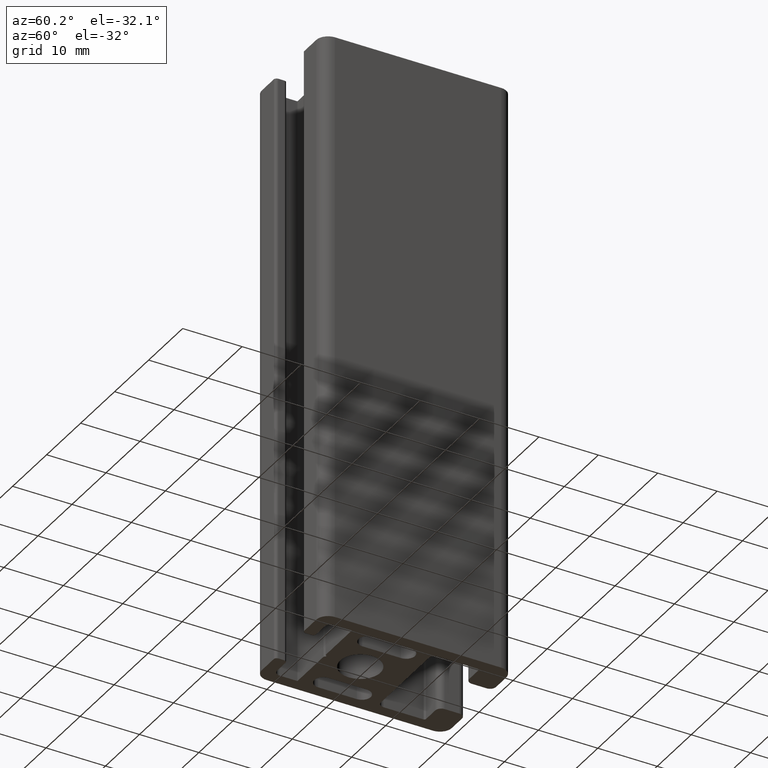
[diagram: clean part render]
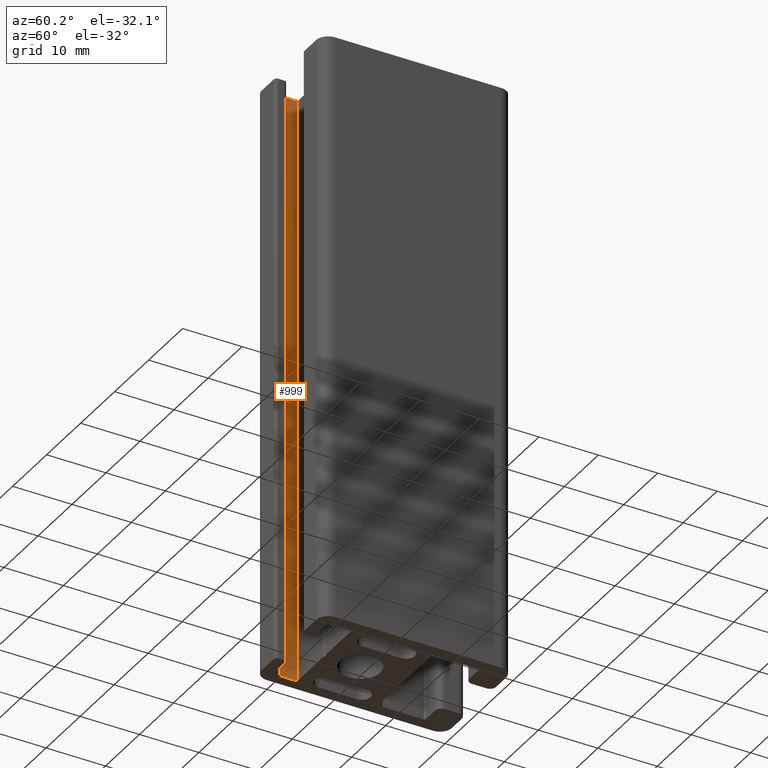
[diagram: same view with one face highlighted and labeled with its STEP entity id]
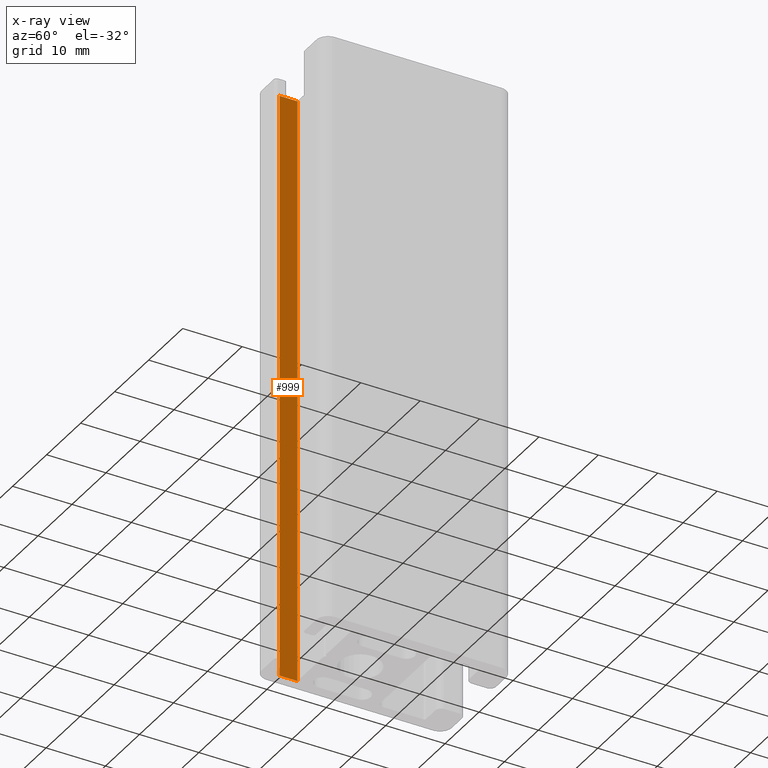
[diagram: x-ray of the same camera — body ghosted, the highlighted face saturated]
A machine part, auxiliary view. The second image highlights one B-rep face of the part: STEP entity #999.
The next image is the same camera in x-ray: the body ghosted, the highlighted face saturated — about 0% of this face is hidden behind the body in this view.
In plain terms, the highlighted planar face has unit normal (-1, 0, 0).
Its self-contained STEP definition (entity closure, byte-faithful):
#28=PLANE('',#1071);
#66=FACE_OUTER_BOUND('',#119,.T.);
#119=EDGE_LOOP('',(#721,#722,#723,#724));
#189=LINE('',#1532,#292);
#190=LINE('',#1535,#293);
#191=LINE('',#1537,#294);
#192=LINE('',#1538,#295);
#292=VECTOR('',#1231,100.);
#293=VECTOR('',#1234,3.00000057528016);
#294=VECTOR('',#1235,3.00000057528016);
#295=VECTOR('',#1236,100.);
#446=VERTEX_POINT('',#1528);
#447=VERTEX_POINT('',#1530);
#448=VERTEX_POINT('',#1534);
#449=VERTEX_POINT('',#1536);
#559=EDGE_CURVE('',#447,#446,#189,.T.);
#560=EDGE_CURVE('',#446,#448,#190,.T.);
#561=EDGE_CURVE('',#449,#447,#191,.T.);
#562=EDGE_CURVE('',#449,#448,#192,.T.);
#721=ORIENTED_EDGE('',*,*,#560,.F.);
#722=ORIENTED_EDGE('',*,*,#559,.F.);
#723=ORIENTED_EDGE('',*,*,#561,.F.);
#724=ORIENTED_EDGE('',*,*,#562,.T.);
#999=ADVANCED_FACE('',(#66),#28,.F.);
#1071=AXIS2_PLACEMENT_3D('',#1533,#1232,#1233);
#1231=DIRECTION('',(0.,0.,1.));
#1232=DIRECTION('center_axis',(-1.,0.,0.));
#1233=DIRECTION('ref_axis',(0.,-1.,0.));
#1234=DIRECTION('',(0.,1.,0.));
#1235=DIRECTION('',(0.,-1.,0.));
#1236=DIRECTION('',(0.,0.,1.));
#1528=CARTESIAN_POINT('',(-8.,-9.00000057528016,100.));
#1530=CARTESIAN_POINT('',(-8.,-9.00000057528016,0.));
#1532=CARTESIAN_POINT('',(-8.,-9.00000057528016,0.));
#1533=CARTESIAN_POINT('Origin',(-8.,-6.,0.));
#1534=CARTESIAN_POINT('',(-8.,-6.,100.));
#1535=CARTESIAN_POINT('',(-8.,-1.,100.));
#1536=CARTESIAN_POINT('',(-8.,-6.,0.));
#1537=CARTESIAN_POINT('',(-8.,-1.,0.));
#1538=CARTESIAN_POINT('',(-8.,-6.,0.));